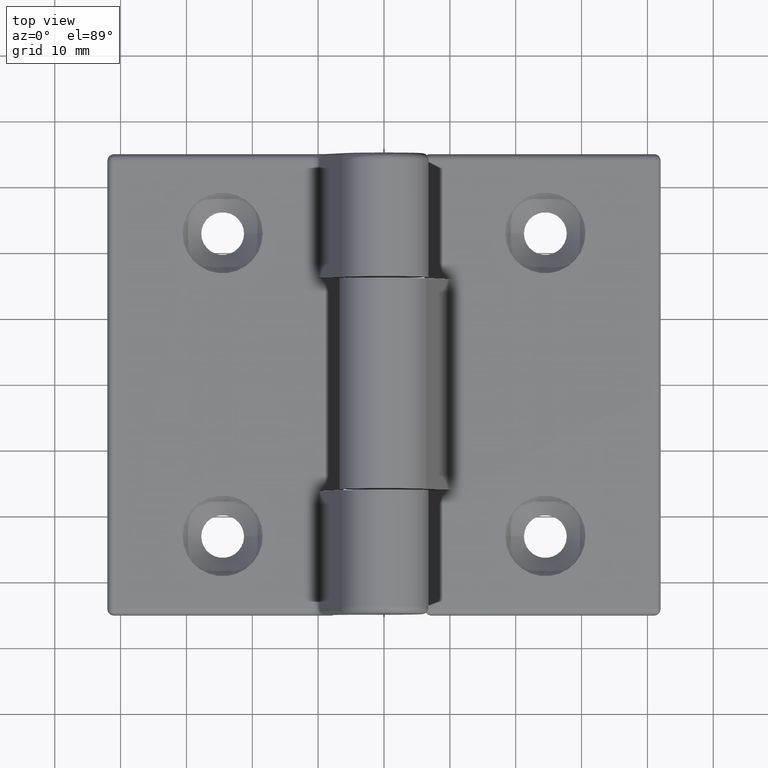
[diagram: clean part render]
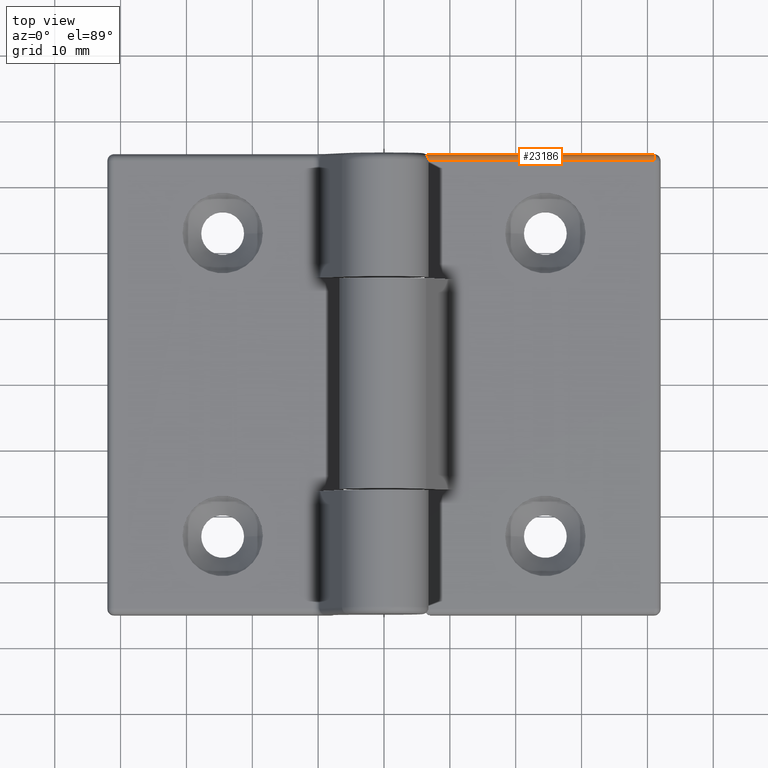
[diagram: same view with one face highlighted and labeled with its STEP entity id]
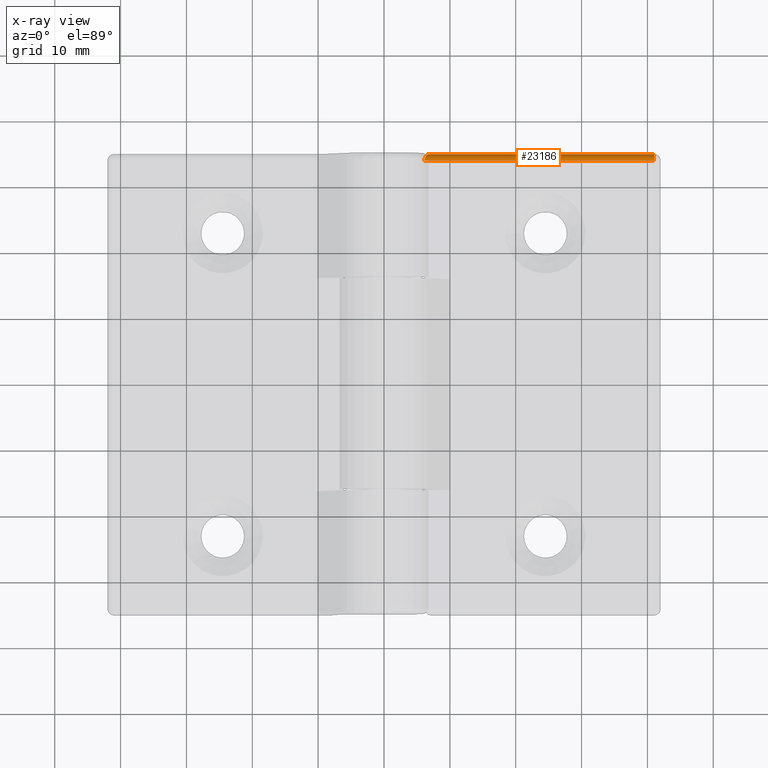
[diagram: x-ray of the same camera — body ghosted, the highlighted face saturated]
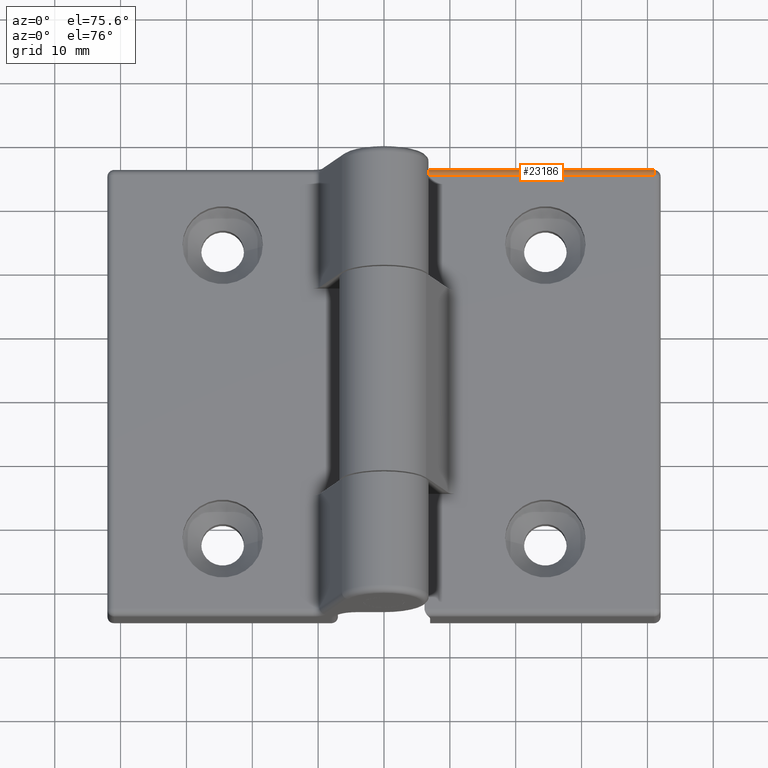
[diagram: same view with one face highlighted and labeled with its STEP entity id]
A machine part, top view. The second image highlights one B-rep face of the part: STEP entity #23186.
The next image is the same camera in x-ray: the body ghosted, the highlighted face saturated — about 0% of this face is hidden behind the body in this view.
A second angle (auxiliary view) of the same face is appended — the face is thin or edge-on in the first view.
In plain terms, the highlighted cylindrical surface (edge-blend (fillet) strip) has radius 1 mm, axis along (-1, 0, 0).
Its self-contained STEP definition (entity closure, byte-faithful):
#190 = CARTESIAN_POINT ( 'NONE',  ( -3.999999999999997335, -35.00000000000000000, 4.000000000000000888 ) ) ;
#934 = FACE_OUTER_BOUND ( 'NONE', #29551, .T. ) ;
#1136 = CARTESIAN_POINT ( 'NONE',  ( -6.738223757025344263, -35.00000000000000000, 4.134055465272492569 ) ) ;
#2970 = LINE ( 'NONE', #190, #8400 ) ;
#3440 = EDGE_CURVE ( 'NONE', #25504, #23630, #2970, .T. ) ;
#3454 = ORIENTED_EDGE ( 'NONE', *, *, #18749, .F. ) ;
#3736 = CARTESIAN_POINT ( 'NONE',  ( -6.338249465808126537, -34.63467363655574616, 4.782909612527340926 ) ) ;
#5400 = CARTESIAN_POINT ( 'NONE',  ( -41.00000000000000000, -34.00000000000000000, 5.000000000000000000 ) ) ;
#5878 = CARTESIAN_POINT ( 'NONE',  ( -6.174540792462714478, -34.28432999813575321, 4.968035490910415852 ) ) ;
#5946 = VERTEX_POINT ( 'NONE', #5400 ) ;
#5980 = CARTESIAN_POINT ( 'NONE',  ( -6.791057147390570314, -35.00000000000000000, 4.000000000000000888 ) ) ;
#6181 = CARTESIAN_POINT ( 'NONE',  ( -42.00000000000000000, -34.00000000000000000, 5.000000000000000000 ) ) ;
#6548 = B_SPLINE_CURVE_WITH_KNOTS ( 'NONE', 3,
 ( #10474, #19608, #5878, #26137, #3736, #26432, #8393, #12466, #1136, #5980 ),
 .UNSPECIFIED., .F., .F.,
 ( 4, 2, 2, 2, 4 ),
 ( 0.000000000000000000, 0.0004261176588745136501, 0.0008522353177490273003, 0.001278352976623540896, 0.001704470635498054601 ),
 .UNSPECIFIED. ) ;
#7211 = DIRECTION ( 'NONE',  ( 0.000000000000000000, 0.000000000000000000, -1.000000000000000000 ) ) ;
#8151 = CARTESIAN_POINT ( 'NONE',  ( -6.142428528562851930, -34.00000000000000000, 5.000000000000000888 ) ) ;
#8196 = ORIENTED_EDGE ( 'NONE', *, *, #25541, .F. ) ;
#8393 = CARTESIAN_POINT ( 'NONE',  ( -6.543823682067126057, -34.87751052184562894, 4.495948277003682492 ) ) ;
#8400 = VECTOR ( 'NONE', #16412, 1000.000000000000000 ) ;
#8990 = CARTESIAN_POINT ( 'NONE',  ( -6.791057147390570314, -35.00000000000000000, 4.000000000000000888 ) ) ;
#10474 = CARTESIAN_POINT ( 'NONE',  ( -6.142428528562851930, -34.00000000000000000, 5.000000000000000888 ) ) ;
#10729 = ORIENTED_EDGE ( 'NONE', *, *, #3440, .F. ) ;
#11573 = CIRCLE ( 'NONE', #13044, 1.000000000000000000 ) ;
#11704 = CARTESIAN_POINT ( 'NONE',  ( -41.00000000000000000, -34.00000000000000000, 4.000000000000000000 ) ) ;
#12466 = CARTESIAN_POINT ( 'NONE',  ( -6.676432760491327834, -34.97334106008251808, 4.261909507597825275 ) ) ;
#13044 = AXIS2_PLACEMENT_3D ( 'NONE', #11704, #20647, #7211 ) ;
#15074 = CARTESIAN_POINT ( 'NONE',  ( -41.00000000000000000, -35.00000000000000000, 4.000000000000000000 ) ) ;
#15585 = DIRECTION ( 'NONE',  ( 1.000000000000000000, -0.000000000000000000, 2.774597523730342882E-17 ) ) ;
#16412 = DIRECTION ( 'NONE',  ( -1.000000000000000000, 0.000000000000000000, -2.774597523730342882E-17 ) ) ;
#16434 = ORIENTED_EDGE ( 'NONE', *, *, #25638, .T. ) ;
#17333 = DIRECTION ( 'NONE',  ( 1.000000000000000000, -0.000000000000000000, 2.774597523730342882E-17 ) ) ;
#18749 = EDGE_CURVE ( 'NONE', #5946, #24813, #26204, .T. ) ;
#19608 = CARTESIAN_POINT ( 'NONE',  ( -6.142428528562851042, -34.14465398870198953, 5.000000000000000000 ) ) ;
#20647 = DIRECTION ( 'NONE',  ( 1.000000000000000000, -0.000000000000000000, 2.774597523730342882E-17 ) ) ;
#22259 = DIRECTION ( 'NONE',  ( 0.000000000000000000, 0.000000000000000000, -1.000000000000000000 ) ) ;
#22348 = CARTESIAN_POINT ( 'NONE',  ( -42.00000000000000000, -34.00000000000000000, 4.000000000000000000 ) ) ;
#22702 = CYLINDRICAL_SURFACE ( 'NONE', #27542, 1.000000000000000000 ) ;
#23186 = ADVANCED_FACE ( 'NONE', ( #934 ), #22702, .T. ) ;
#23630 = VERTEX_POINT ( 'NONE', #15074 ) ;
#24813 = VERTEX_POINT ( 'NONE', #8151 ) ;
#25504 = VERTEX_POINT ( 'NONE', #8990 ) ;
#25541 = EDGE_CURVE ( 'NONE', #24813, #25504, #6548, .T. ) ;
#25638 = EDGE_CURVE ( 'NONE', #5946, #23630, #11573, .T. ) ;
#26137 = CARTESIAN_POINT ( 'NONE',  ( -6.273171022313114520, -34.52903218703201560, 4.859104885672382856 ) ) ;
#26204 = LINE ( 'NONE', #6181, #28353 ) ;
#26432 = CARTESIAN_POINT ( 'NONE',  ( -6.473219580352316704, -34.80849131093611248, 4.601747360997443081 ) ) ;
#27542 = AXIS2_PLACEMENT_3D ( 'NONE', #22348, #15585, #22259 ) ;
#28353 = VECTOR ( 'NONE', #17333, 1000.000000000000000 ) ;
#29551 = EDGE_LOOP ( 'NONE', ( #3454, #16434, #10729, #8196 ) ) ;